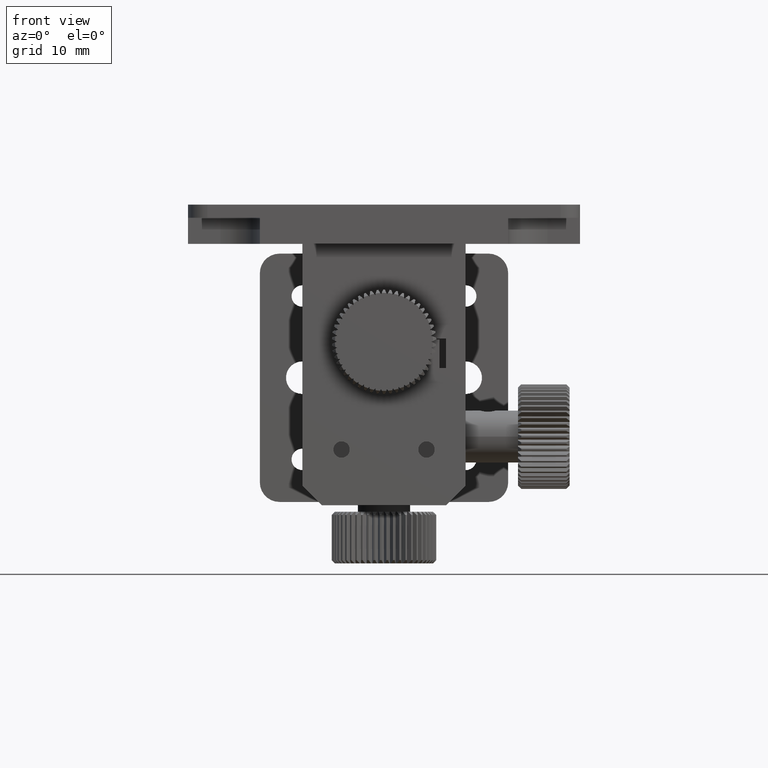
[diagram: clean part render]
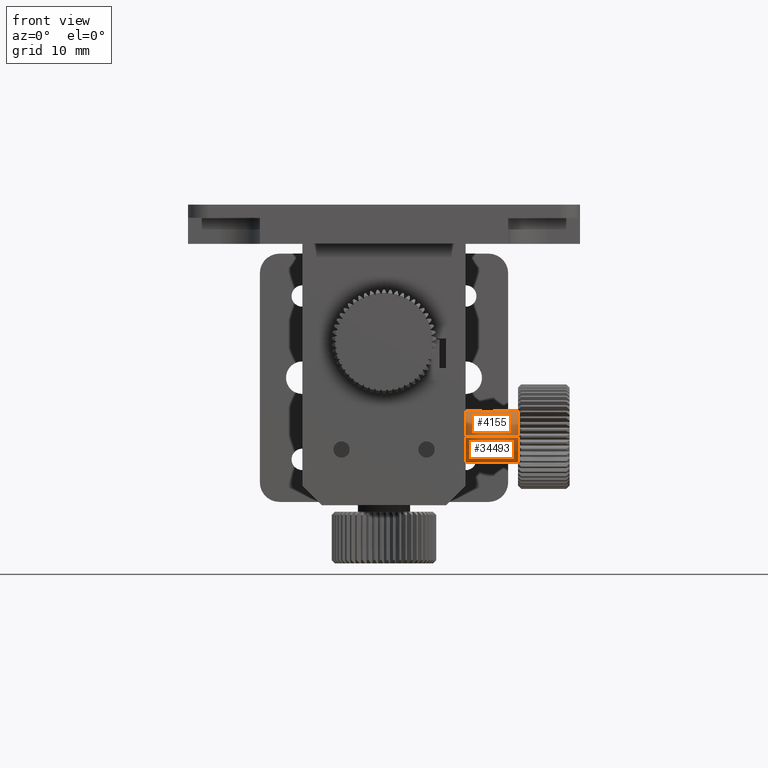
[diagram: same view with one multi-face feature highlighted, each face labeled with its STEP entity id]
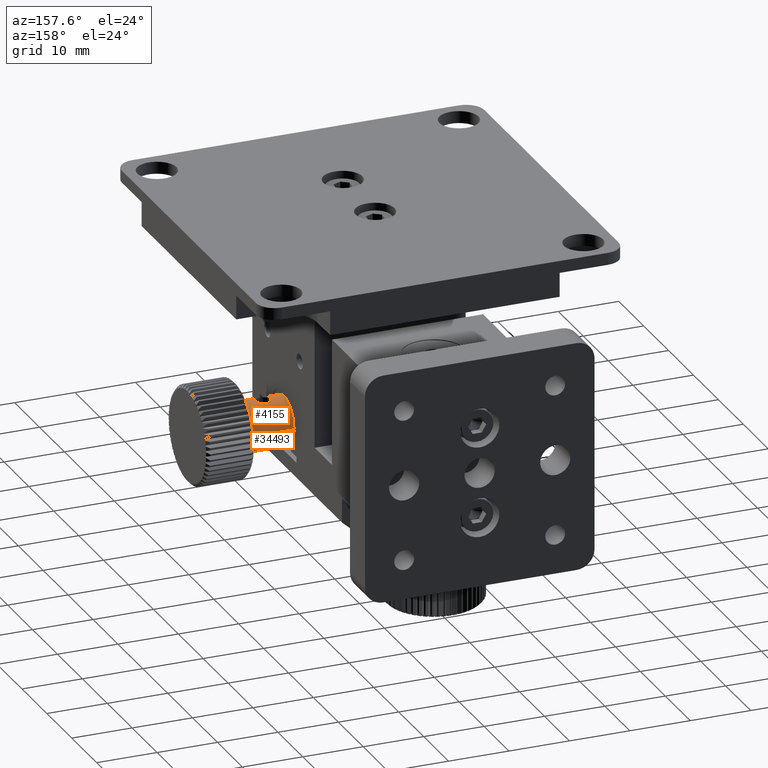
[diagram: same view with one multi-face feature highlighted, each face labeled with its STEP entity id]
A machine part, front view. The highlighted faces form ONE feature: a constant-radius fillet chain: 2 tangent blend faces with common blend radius 4 mm. The faces share edges in the B-rep.
A second angle (auxiliary view) of the same feature is appended — it is thin or edge-on in the first view.
Their STEP definitions:
[1] entity #4155 (Cylinder):
#955 = VECTOR ( 'NONE', #27838, 1000.000000000000000 ) ;
#2476 = VERTEX_POINT ( 'NONE', #36862 ) ;
#2528 = CARTESIAN_POINT ( 'NONE',  ( 15.73373195364969500, -3.249999999999985800, -25.70032896160731500 ) ) ;
#2773 = CARTESIAN_POINT ( 'NONE',  ( 15.26846595104561600, -3.408965749517634000, -25.65111052108588700 ) ) ;
#2885 = CARTESIAN_POINT ( 'NONE',  ( 16.06631316999742200, -3.249999999999988900, -25.70032896160733300 ) ) ;
#2905 = CARTESIAN_POINT ( 'NONE',  ( 14.64999877326848800, -4.582352437315761600, -25.49999961664640900 ) ) ;
#3014 = CARTESIAN_POINT ( 'NONE',  ( 15.90000000000000700, -3.249999999999988000, -25.70032896160733000 ) ) ;
#3136 = CARTESIAN_POINT ( 'NONE',  ( 16.72572146259670900, -5.441980714330490800, -25.61204926091042500 ) ) ;
#3532 = ORIENTED_EDGE ( 'NONE', *, *, #21902, .T. ) ;
#4058 = DIRECTION ( 'NONE',  ( 1.000000000000000000, 1.263163428749859900E-016, 2.673764185381623500E-018 ) ) ;
#4155 = ADVANCED_FACE ( 'NONE', ( #13340, #20425 ), #10485, .T. ) ;
#5155 = ORIENTED_EDGE ( 'NONE', *, *, #9019, .T. ) ;
#5643 = CARTESIAN_POINT ( 'NONE',  ( 14.68324045729713300, -4.170463607115745900, -25.51071293369030400 ) ) ;
#5651 = B_SPLINE_CURVE_WITH_KNOTS ( 'NONE', 3,
 ( #3014, #2885, #27018, #26760, #33029, #21183, #26635, #5761, #11957, #15149, #5881, #35742, #6145, #14764, #23914, #3136, #18147, #11686, #17898, #27156, #9162, #15025 ),
 .UNSPECIFIED., .F., .F.,
 ( 4, 2, 2, 2, 2, 2, 2, 2, 2, 2, 4 ),
 ( 0.0000000000000000000, 0.0004915975080935538600, 0.0009831950161871077200, 0.001474792524280661600, 0.001966390032374215400, 0.002212188786420993300, 0.002457987540467771700, 0.002949585048561325800, 0.003195383802608102400, 0.003441182556654879400, 0.003932780064748443000 ),
 .UNSPECIFIED. ) ;
#5761 = CARTESIAN_POINT ( 'NONE',  ( 17.11658127889569400, -4.169975347142840700, -25.51076571873320400 ) ) ;
#5818 = CARTESIAN_POINT ( 'NONE',  ( 12.40000000000001100, -8.499999999999987600, -29.49999999999999600 ) ) ;
#5881 = CARTESIAN_POINT ( 'NONE',  ( 17.14177190032288700, -4.664996851971218400, -25.50259298531802100 ) ) ;
#6145 = CARTESIAN_POINT ( 'NONE',  ( 17.08578134467946100, -4.903983234405638200, -25.51971582942395500 ) ) ;
#6175 = EDGE_LOOP ( 'NONE', ( #5155, #36521 ) ) ;
#7187 = CARTESIAN_POINT ( 'NONE',  ( 12.40000000000001100, -4.499999999999987600, -29.50000000000000000 ) ) ;
#9019 = EDGE_CURVE ( 'NONE', #34914, #25394, #5651, .T. ) ;
#9162 = CARTESIAN_POINT ( 'NONE',  ( 16.06383847710262100, -5.749999999999961800, -25.70032896160732200 ) ) ;
#9707 = DIRECTION ( 'NONE',  ( 0.0000000000000000000, 1.000000000000000000, -8.673617379883993100E-016 ) ) ;
#10430 = CIRCLE ( 'NONE', #28086, 4.000000000000019500 ) ;
#10485 = CYLINDRICAL_SURFACE ( 'NONE', #11106, 4.000000000000019500 ) ;
#10561 = VERTEX_POINT ( 'NONE', #27114 ) ;
#11106 = AXIS2_PLACEMENT_3D ( 'NONE', #22090, #4058, #9707 ) ;
#11405 = VERTEX_POINT ( 'NONE', #17648 ) ;
#11686 = CARTESIAN_POINT ( 'NONE',  ( 16.52811423430373200, -5.583778745667650000, -25.64933555416083200 ) ) ;
#11698 = CARTESIAN_POINT ( 'NONE',  ( 14.65831696501200000, -4.665551702009274500, -25.50262050532775100 ) ) ;
#11957 = CARTESIAN_POINT ( 'NONE',  ( 17.14992703620495400, -4.335187168930178600, -25.50002280118392800 ) ) ;
#12090 = VECTOR ( 'NONE', #17928, 1000.000000000000000 ) ;
#12918 = CARTESIAN_POINT ( 'NONE',  ( 12.40000000000001100, -0.4999999999999683600, -29.50000000000000400 ) ) ;
#13340 = FACE_BOUND ( 'NONE', #6175, .T. ) ;
#13986 = CARTESIAN_POINT ( 'NONE',  ( 15.13170545230787800, -5.499423877560246000, -25.62506232108568200 ) ) ;
#14764 = CARTESIAN_POINT ( 'NONE',  ( 16.99092384669525700, -5.132063734914734000, -25.54728529186812100 ) ) ;
#15025 = CARTESIAN_POINT ( 'NONE',  ( 15.90000000000000000, -5.749999999999963600, -25.70032896160732200 ) ) ;
#15149 = CARTESIAN_POINT ( 'NONE',  ( 17.15003629753785600, -4.581574941729494200, -25.49998865702042400 ) ) ;
#16914 = CARTESIAN_POINT ( 'NONE',  ( 15.90000000000000000, -5.749999999999963600, -25.70032896160732200 ) ) ;
#16958 = VERTEX_POINT ( 'NONE', #5818 ) ;
#17272 = AXIS2_PLACEMENT_3D ( 'NONE', #7187, #37040, #36637 ) ;
#17404 = EDGE_CURVE ( 'NONE', #25394, #34914, #20844, .T. ) ;
#17648 = CARTESIAN_POINT ( 'NONE',  ( 12.40000000000001100, -0.4999999999999874500, -29.50000000000000400 ) ) ;
#17898 = CARTESIAN_POINT ( 'NONE',  ( 16.45495027829250700, -5.623021263877062000, -25.66074344988908600 ) ) ;
#17928 = DIRECTION ( 'NONE',  ( 1.000000000000000000, 1.263163428749859900E-016, 2.673764185381623500E-018 ) ) ;
#18147 = CARTESIAN_POINT ( 'NONE',  ( 16.66314985810690900, -5.493330838626954800, -25.62501782080956800 ) ) ;
#19463 = EDGE_LOOP ( 'NONE', ( #24028, #21119, #3532, #37522 ) ) ;
#20425 = FACE_OUTER_BOUND ( 'NONE', #19463, .T. ) ;
#20440 = CARTESIAN_POINT ( 'NONE',  ( 14.80922701753184100, -5.132376946253887500, -25.54732833047622300 ) ) ;
#20563 = CARTESIAN_POINT ( 'NONE',  ( 14.90145924429858600, -3.730799450648103900, -25.57289752419053400 ) ) ;
#20680 = CARTESIAN_POINT ( 'NONE',  ( 15.57008388434551600, -3.283305154385125000, -25.68896869479197800 ) ) ;
#20702 = CARTESIAN_POINT ( 'NONE',  ( 12.40000000000001100, -8.500000000000007100, -29.49999999999999600 ) ) ;
#20815 = CARTESIAN_POINT ( 'NONE',  ( 15.13057603299035100, -3.501631388258244800, -25.62481439725515400 ) ) ;
#20844 = B_SPLINE_CURVE_WITH_KNOTS ( 'NONE', 3,
 ( #16914, #32142, #22900, #31880, #13986, #38766, #20440, #23921, #38627, #11698, #2905, #38351, #5643, #32780, #20563, #20815, #2773, #20680, #2528, #29375 ),
 .UNSPECIFIED., .F., .F.,
 ( 4, 2, 2, 2, 2, 2, 2, 2, 2, 4 ),
 ( 0.003932780064748443000, 0.004424244193913124200, 0.004915708323077805400, 0.005407172452242485700, 0.005652904516824826300, 0.005898636581407166000, 0.006390100710571842800, 0.006881564839736519600, 0.007373028968901197300, 0.007864493098065873300 ),
 .UNSPECIFIED. ) ;
#21119 = ORIENTED_EDGE ( 'NONE', *, *, #24772, .T. ) ;
#21183 = CARTESIAN_POINT ( 'NONE',  ( 16.89856419261423100, -3.730842628365005400, -25.57289009353699800 ) ) ;
#21902 = EDGE_CURVE ( 'NONE', #10561, #2476, #10430, .T. ) ;
#22090 = CARTESIAN_POINT ( 'NONE',  ( 12.40000000000001100, -4.499999999999987600, -29.50000000000000000 ) ) ;
#22900 = CARTESIAN_POINT ( 'NONE',  ( 15.57083646384314300, -5.716874893467554000, -25.68902940930762200 ) ) ;
#23863 = LINE ( 'NONE', #20702, #12090 ) ;
#23914 = CARTESIAN_POINT ( 'NONE',  ( 16.89872336032786700, -5.269172314497423800, -25.57287275306212800 ) ) ;
#23921 = CARTESIAN_POINT ( 'NONE',  ( 14.71422626322737400, -4.904026262190004800, -25.51971844441085600 ) ) ;
#24028 = ORIENTED_EDGE ( 'NONE', *, *, #27064, .F. ) ;
#24159 = DIRECTION ( 'NONE',  ( 0.0000000000000000000, -1.000000000000000000, 8.673617379883993100E-016 ) ) ;
#24406 = LINE ( 'NONE', #12918, #955 ) ;
#24772 = EDGE_CURVE ( 'NONE', #16958, #10561, #23863, .T. ) ;
#25394 = VERTEX_POINT ( 'NONE', #38600 ) ;
#26635 = CARTESIAN_POINT ( 'NONE',  ( 16.99151981336593000, -3.869467862292038900, -25.54711046882850300 ) ) ;
#26760 = CARTESIAN_POINT ( 'NONE',  ( 16.53160197028288500, -3.408958855322857100, -25.65111088889456800 ) ) ;
#27018 = CARTESIAN_POINT ( 'NONE',  ( 16.22938982436157200, -3.283121135095736300, -25.68902584670090800 ) ) ;
#27064 = EDGE_CURVE ( 'NONE', #16958, #11405, #28313, .T. ) ;
#27114 = CARTESIAN_POINT ( 'NONE',  ( 20.50000000000000700, -8.499999999999987600, -29.49999999999999600 ) ) ;
#27156 = CARTESIAN_POINT ( 'NONE',  ( 16.22909468473037700, -5.716874262391272900, -25.68903063561408100 ) ) ;
#27533 = CARTESIAN_POINT ( 'NONE',  ( 20.50000000000000700, -4.499999999999986700, -29.50000000000003200 ) ) ;
#27838 = DIRECTION ( 'NONE',  ( 1.000000000000000000, 1.263163428749859900E-016, 2.673764185381623500E-018 ) ) ;
#28086 = AXIS2_PLACEMENT_3D ( 'NONE', #27533, #33025, #24159 ) ;
#28313 = CIRCLE ( 'NONE', #17272, 4.000000000000020400 ) ;
#29375 = CARTESIAN_POINT ( 'NONE',  ( 15.90000000000000700, -3.249999999999988000, -25.70032896160733000 ) ) ;
#31880 = CARTESIAN_POINT ( 'NONE',  ( 15.26945115264600600, -5.591577432428644000, -25.65126773359247300 ) ) ;
#32142 = CARTESIAN_POINT ( 'NONE',  ( 15.73620597511737900, -5.749999999999963600, -25.70032896160732200 ) ) ;
#32780 = CARTESIAN_POINT ( 'NONE',  ( 14.80852296286183800, -3.869305227234458100, -25.54712387807723000 ) ) ;
#33025 = DIRECTION ( 'NONE',  ( -1.000000000000000000, -1.263163428749859900E-016, -2.673764185381623500E-018 ) ) ;
#33029 = CARTESIAN_POINT ( 'NONE',  ( 16.66955274986480300, -3.501740477487290000, -25.62478733415919100 ) ) ;
#33328 = CARTESIAN_POINT ( 'NONE',  ( 15.90000000000000700, -3.249999999999988000, -25.70032896160733000 ) ) ;
#33458 = EDGE_CURVE ( 'NONE', #11405, #2476, #24406, .T. ) ;
#34914 = VERTEX_POINT ( 'NONE', #33328 ) ;
#35742 = CARTESIAN_POINT ( 'NONE',  ( 17.10958347023543900, -4.825774833474133300, -25.51247475743864300 ) ) ;
#36521 = ORIENTED_EDGE ( 'NONE', *, *, #17404, .T. ) ;
#36637 = DIRECTION ( 'NONE',  ( 0.0000000000000000000, -1.000000000000000000, 8.673617379883991100E-016 ) ) ;
#36862 = CARTESIAN_POINT ( 'NONE',  ( 20.50000000000000700, -0.4999999999999865700, -29.50000000000000400 ) ) ;
#37040 = DIRECTION ( 'NONE',  ( -1.000000000000000000, -1.263163428749859900E-016, -2.673764185381623500E-018 ) ) ;
#37522 = ORIENTED_EDGE ( 'NONE', *, *, #33458, .F. ) ;
#38351 = CARTESIAN_POINT ( 'NONE',  ( 14.65000245387900800, -4.335239271244238200, -25.50000076683718900 ) ) ;
#38600 = CARTESIAN_POINT ( 'NONE',  ( 15.90000000000000000, -5.749999999999963600, -25.70032896160732200 ) ) ;
#38627 = CARTESIAN_POINT ( 'NONE',  ( 14.69045879532439100, -4.825874515123612900, -25.51248749332905400 ) ) ;
#38766 = CARTESIAN_POINT ( 'NONE',  ( 14.90089909105650400, -5.268714493683637200, -25.57277857388863800 ) ) ;
[2] entity #34493 (Cylinder):
#875 = DIRECTION ( 'NONE',  ( 1.000000000000000000, 1.263163428749859900E-016, 2.673764185381623500E-018 ) ) ;
#955 = VECTOR ( 'NONE', #27838, 1000.000000000000000 ) ;
#1578 = AXIS2_PLACEMENT_3D ( 'NONE', #18103, #875, #36852 ) ;
#2476 = VERTEX_POINT ( 'NONE', #36862 ) ;
#4834 = ORIENTED_EDGE ( 'NONE', *, *, #33458, .T. ) ;
#5818 = CARTESIAN_POINT ( 'NONE',  ( 12.40000000000001100, -8.499999999999987600, -29.49999999999999600 ) ) ;
#6738 = ORIENTED_EDGE ( 'NONE', *, *, #15347, .F. ) ;
#7073 = EDGE_CURVE ( 'NONE', #2476, #10561, #11927, .T. ) ;
#8400 = EDGE_LOOP ( 'NONE', ( #24001, #6738, #4834, #9777 ) ) ;
#9777 = ORIENTED_EDGE ( 'NONE', *, *, #7073, .T. ) ;
#10389 = DIRECTION ( 'NONE',  ( 0.0000000000000000000, -1.000000000000000000, 8.673617379883993100E-016 ) ) ;
#10561 = VERTEX_POINT ( 'NONE', #27114 ) ;
#11405 = VERTEX_POINT ( 'NONE', #17648 ) ;
#11927 = CIRCLE ( 'NONE', #15253, 4.000000000000019500 ) ;
#12090 = VECTOR ( 'NONE', #17928, 1000.000000000000000 ) ;
#12918 = CARTESIAN_POINT ( 'NONE',  ( 12.40000000000001100, -0.4999999999999683600, -29.50000000000000400 ) ) ;
#12931 = CIRCLE ( 'NONE', #14736, 4.000000000000020400 ) ;
#14697 = DIRECTION ( 'NONE',  ( 0.0000000000000000000, -1.000000000000000000, 8.673617379883991100E-016 ) ) ;
#14736 = AXIS2_PLACEMENT_3D ( 'NONE', #17455, #32589, #14697 ) ;
#15253 = AXIS2_PLACEMENT_3D ( 'NONE', #19773, #16640, #10389 ) ;
#15347 = EDGE_CURVE ( 'NONE', #11405, #16958, #12931, .T. ) ;
#16640 = DIRECTION ( 'NONE',  ( -1.000000000000000000, -1.263163428749859900E-016, -2.673764185381623500E-018 ) ) ;
#16958 = VERTEX_POINT ( 'NONE', #5818 ) ;
#17455 = CARTESIAN_POINT ( 'NONE',  ( 12.40000000000001100, -4.499999999999987600, -29.50000000000000000 ) ) ;
#17648 = CARTESIAN_POINT ( 'NONE',  ( 12.40000000000001100, -0.4999999999999874500, -29.50000000000000400 ) ) ;
#17928 = DIRECTION ( 'NONE',  ( 1.000000000000000000, 1.263163428749859900E-016, 2.673764185381623500E-018 ) ) ;
#18103 = CARTESIAN_POINT ( 'NONE',  ( 12.40000000000001100, -4.499999999999987600, -29.50000000000000000 ) ) ;
#19773 = CARTESIAN_POINT ( 'NONE',  ( 20.50000000000000700, -4.499999999999986700, -29.50000000000003200 ) ) ;
#20702 = CARTESIAN_POINT ( 'NONE',  ( 12.40000000000001100, -8.500000000000007100, -29.49999999999999600 ) ) ;
#22044 = CYLINDRICAL_SURFACE ( 'NONE', #1578, 4.000000000000019500 ) ;
#23863 = LINE ( 'NONE', #20702, #12090 ) ;
#24001 = ORIENTED_EDGE ( 'NONE', *, *, #24772, .F. ) ;
#24406 = LINE ( 'NONE', #12918, #955 ) ;
#24772 = EDGE_CURVE ( 'NONE', #16958, #10561, #23863, .T. ) ;
#27114 = CARTESIAN_POINT ( 'NONE',  ( 20.50000000000000700, -8.499999999999987600, -29.49999999999999600 ) ) ;
#27838 = DIRECTION ( 'NONE',  ( 1.000000000000000000, 1.263163428749859900E-016, 2.673764185381623500E-018 ) ) ;
#32589 = DIRECTION ( 'NONE',  ( -1.000000000000000000, -1.263163428749859900E-016, -2.673764185381623500E-018 ) ) ;
#33458 = EDGE_CURVE ( 'NONE', #11405, #2476, #24406, .T. ) ;
#34493 = ADVANCED_FACE ( 'NONE', ( #34618 ), #22044, .T. ) ;
#34618 = FACE_OUTER_BOUND ( 'NONE', #8400, .T. ) ;
#36852 = DIRECTION ( 'NONE',  ( 0.0000000000000000000, 1.000000000000000000, -8.673617379883993100E-016 ) ) ;
#36862 = CARTESIAN_POINT ( 'NONE',  ( 20.50000000000000700, -0.4999999999999865700, -29.50000000000000400 ) ) ;